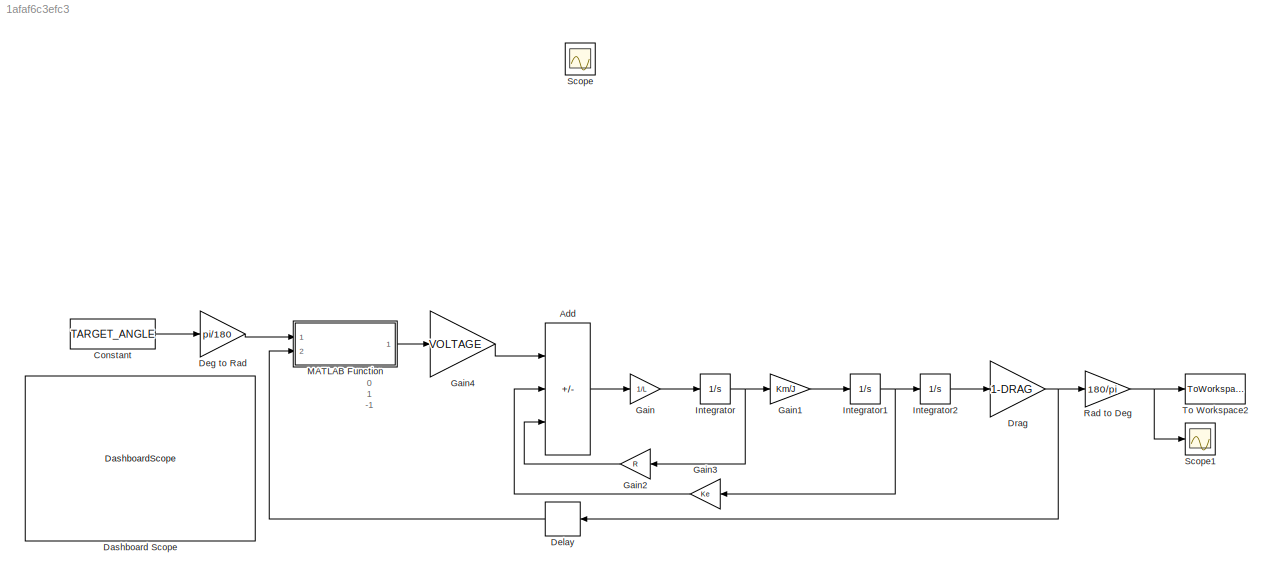
MODEL slx_1afaf6c3efc3
KIND model
CONFIG AbsTol = auto
CONFIG EnableMultiTasking = off
CONFIG FixedStep = auto
CONFIG MaxStep = auto
CONFIG MinStep = auto
CONFIG RelTol = 1e-3
CONFIG SampleTimeConstraint = Unconstrained
CONFIG SolverName = VariableStepAuto
CONFIG StartTime = 0.0
CONFIG StopTime = 4.5
WORKSPACE source: mxarray member
WORKSPACE U = 0
BLOCK [Sum] Add
  IconShape = rectangular
  Inputs = +--
  Ports = [3, 1]
BLOCK [Constant] Constant
  Value = TARGET_ANGLE
BLOCK [DashboardScope] Dashboard Scope
BLOCK [Gain] Deg to Rad
  Gain = pi/180
BLOCK [Delay] Delay
  DelayLength = 300
  InputPortMap = u0
  Ports = [1, 1]
  SampleTime = 50e-6
BLOCK [Gain] Drag
  Gain = 1-DRAG
BLOCK [Gain] Gain
  Gain = 1/L
BLOCK [Gain] Gain1
  Gain = Km/J
BLOCK [Gain] Gain2
  Gain = R
BLOCK [Gain] Gain3
  Gain = Ke
BLOCK [Gain] Gain4
  Gain = VOLTAGE
BLOCK [Integrator] Integrator
  Ports = [1, 1]
BLOCK [Integrator] Integrator1
  Ports = [1, 1]
BLOCK [Integrator] Integrator2
  Ports = [1, 1]
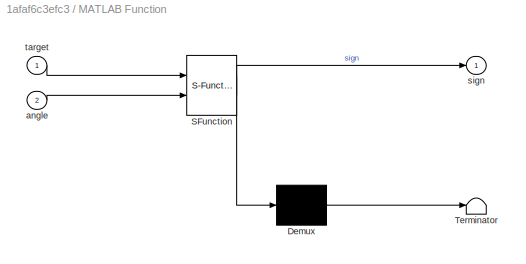
BLOCK [SubSystem] MATLAB Function
  ErrorFcn = Stateflow.Translate.translate
  PermitHierarchicalResolution = ExplicitOnly
  Ports = [2, 1]
  RequestExecContextInheritance = off
  SFBlockType = MATLAB Function
  TreatAsAtomicUnit = on
BLOCK [Demux] MATLAB Function/ Demux 
  Outputs = 1
  Ports = [1, 1]
BLOCK [S-Function] MATLAB Function/ SFunction 
  EnableBusSupport = on
  FunctionName = sf_sfun
  PortCounts = [2 2]
  Ports = [2, 2]
  SFcnIsStateOwnerBlock = off
  SFunctionDeploymentMode = off
  Tag = Stateflow S-Function 2
BLOCK [Terminator] MATLAB Function/ Terminator 
BLOCK [Inport] MATLAB Function/angle
  Port = 2
BLOCK [Outport] MATLAB Function/sign
BLOCK [Inport] MATLAB Function/target
BLOCK [Gain] Rad to Deg
  Gain = 180/pi
BLOCK [Scope] Scope
  Floating = off
  IOType = viewer
  NumInputPorts = 1
  Ports = []
  ScopeSpecificationString = Simulink.scopes.TimeScopeBlockCfg('CurrentConfiguration', extmgr.ConfigurationSet(extmgr.Configuration('Core','General UI',true),extmgr.Configuration('Core','Source UI',true),extmgr.Configuration('Sources','WiredSimulink',true),extmgr.Configuration('Visuals','Time Domain',true,'SerializedDisplays',{struct('MinYLimReal','-12.5','MaxYLimReal','112.5','YLabelReal','','MinYLimMag','0.00000','MaxYLimMa...<+1336ch>
BLOCK [Scope] Scope1
  Floating = off
  NumInputPorts = 1
  Ports = [1]
  ScopeSpecificationString = Simulink.scopes.TimeScopeBlockCfg('CurrentConfiguration', extmgr.ConfigurationSet(extmgr.Configuration('Core','General UI',true),extmgr.Configuration('Core','Source UI',true),extmgr.Configuration('Sources','WiredSimulink',true,'DataLoggingVariableName','ScopeData1'),extmgr.Configuration('Visuals','Time Domain',true,'SerializedDisplays',{struct('MinYLimReal','-72.56444','MaxYLimReal','653.07999','Y...<+1479ch>
BLOCK [ToWorkspace] To Workspace2
  FixptAsFi = on
  MaxDataPoints = inf
  Ports = [1]
  SampleTime = -1
  SaveFormat = Timeseries
  VariableName = coordinate
ANNOTATION (root): 0 1 -1
LINE Add:1 -> Gain:1
LINE Constant:1 -> Deg to Rad:1
LINE Deg to Rad:1 -> MATLAB Function:1
LINE Delay:1 -> MATLAB Function:2
NET Drag:1 -> Delay:1, Rad to Deg:1
LINE Gain1:1 -> Integrator1:1
LINE Gain2:1 -> Add:3
LINE Gain3:1 -> Add:2
LINE Gain4:1 -> Add:1
LINE Gain:1 -> Integrator:1
NET Integrator1:1 -> Gain3:1, Integrator2:1
LINE Integrator2:1 -> Drag:1
NET Integrator:1 -> Gain1:1, Gain2:1
LINE MATLAB Function:1 -> Gain4:1
NET Rad to Deg:1 -> Scope1:1, To Workspace2:1
note: NET lines group one-source signal fan-out (src -> all destinations, sorted); 1:1 wires keep LINE
CHART MATLAB Function states=1 transitions=1
  STATE_LABEL 'eML_blk_kernel()'
  STATE_LABEL 'SCRIPT:\nfunction sign   = on_off(target, angle)\n    sign = 0;\n    if (angle < target) \n        sign = 1;\n    end\n    if (angle > target) \n        sign = -1; \n    end\n    if (angle == target) \n        sign = 0;\n    end\n'
CHART  states=0 transitions=0
